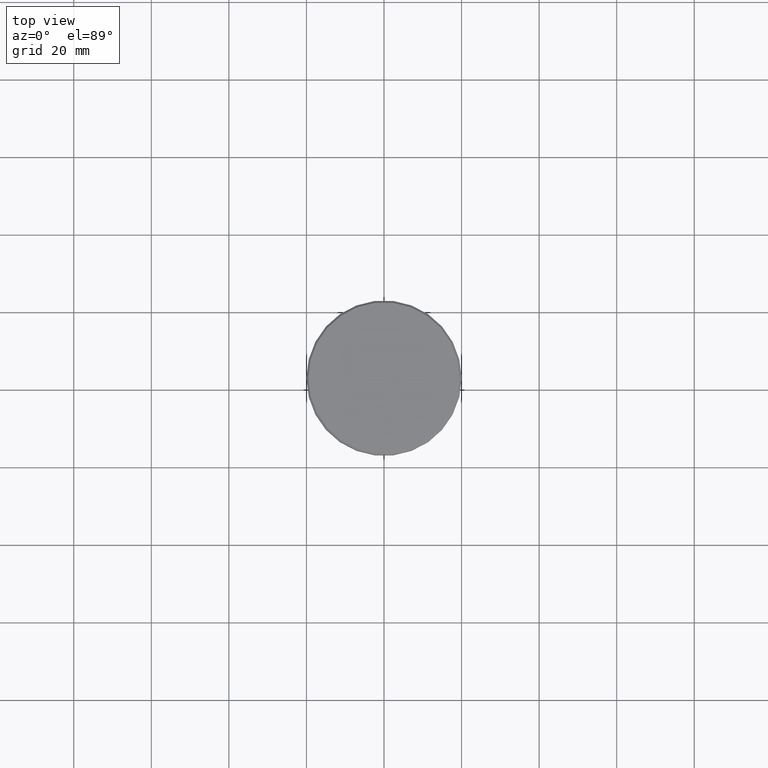
[diagram: clean part render]
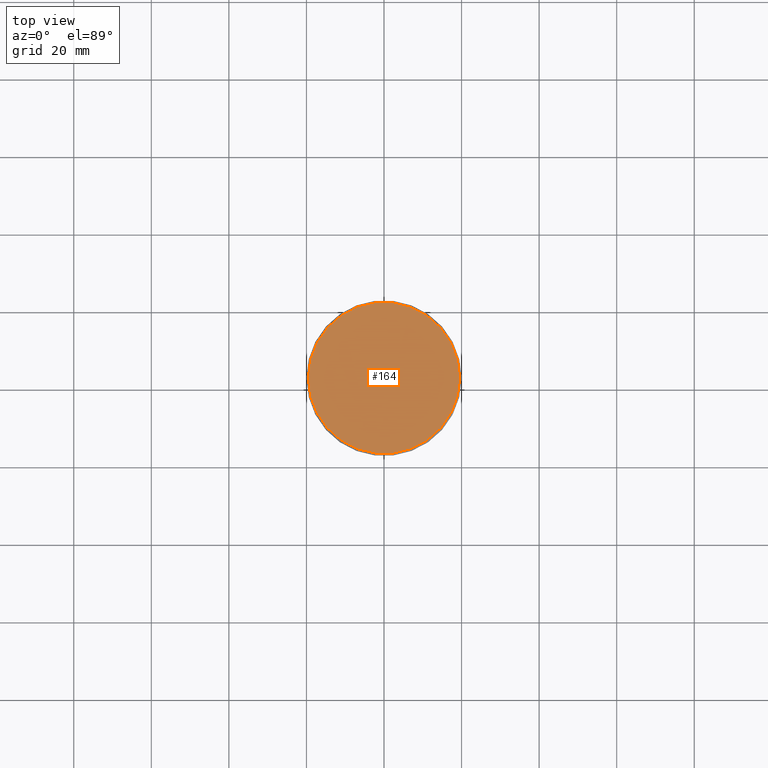
[diagram: same view with one face highlighted and labeled with its STEP entity id]
A machine part, top view. The second image highlights one B-rep face of the part: STEP entity #164.
In plain terms, the highlighted planar face has unit normal (0, -0, 1).
Its self-contained STEP definition (entity closure, byte-faithful):
#32 = EDGE_CURVE ( 'NONE', #647, #614, #763, .T. ) ;
#128 = FACE_OUTER_BOUND ( 'NONE', #611, .T. ) ;
#158 = CARTESIAN_POINT ( 'NONE',  ( 0.000000000000000000, 0.000000000000000000, 0.000000000000000000 ) ) ;
#164 = ADVANCED_FACE ( 'NONE', ( #128 ), #302, .T. ) ;
#297 = DIRECTION ( 'NONE',  ( 1.000000000000000000, 0.000000000000000000, 0.000000000000000000 ) ) ;
#302 = PLANE ( 'NONE',  #385 ) ;
#385 = AXIS2_PLACEMENT_3D ( 'NONE', #404, #771, #1137 ) ;
#404 = CARTESIAN_POINT ( 'NONE',  ( 0.000000000000000000, 0.000000000000000000, 0.000000000000000000 ) ) ;
#433 = DIRECTION ( 'NONE',  ( 1.000000000000000000, 0.000000000000000000, 0.000000000000000000 ) ) ;
#502 = CARTESIAN_POINT ( 'NONE',  ( -19.50000000000001776, 0.000000000000000000, 0.000000000000000000 ) ) ;
#526 = DIRECTION ( 'NONE',  ( -0.000000000000000000, -0.000000000000000000, 1.000000000000000000 ) ) ;
#611 = EDGE_LOOP ( 'NONE', ( #632, #892 ) ) ;
#614 = VERTEX_POINT ( 'NONE', #968 ) ;
#632 = ORIENTED_EDGE ( 'NONE', *, *, #32, .T. ) ;
#647 = VERTEX_POINT ( 'NONE', #502 ) ;
#763 = CIRCLE ( 'NONE', #1147, 19.50000000000001776 ) ;
#771 = DIRECTION ( 'NONE',  ( 0.000000000000000000, -0.000000000000000000, 1.000000000000000000 ) ) ;
#791 = CIRCLE ( 'NONE', #1080, 19.50000000000001776 ) ;
#829 = CARTESIAN_POINT ( 'NONE',  ( 0.000000000000000000, 0.000000000000000000, 0.000000000000000000 ) ) ;
#844 = DIRECTION ( 'NONE',  ( -0.000000000000000000, -0.000000000000000000, 1.000000000000000000 ) ) ;
#892 = ORIENTED_EDGE ( 'NONE', *, *, #1019, .T. ) ;
#968 = CARTESIAN_POINT ( 'NONE',  ( 19.50000000000001776, 2.418677428316023515E-15, 0.000000000000000000 ) ) ;
#1019 = EDGE_CURVE ( 'NONE', #614, #647, #791, .T. ) ;
#1080 = AXIS2_PLACEMENT_3D ( 'NONE', #158, #526, #433 ) ;
#1137 = DIRECTION ( 'NONE',  ( 1.000000000000000000, 0.000000000000000000, 0.000000000000000000 ) ) ;
#1147 = AXIS2_PLACEMENT_3D ( 'NONE', #829, #844, #297 ) ;